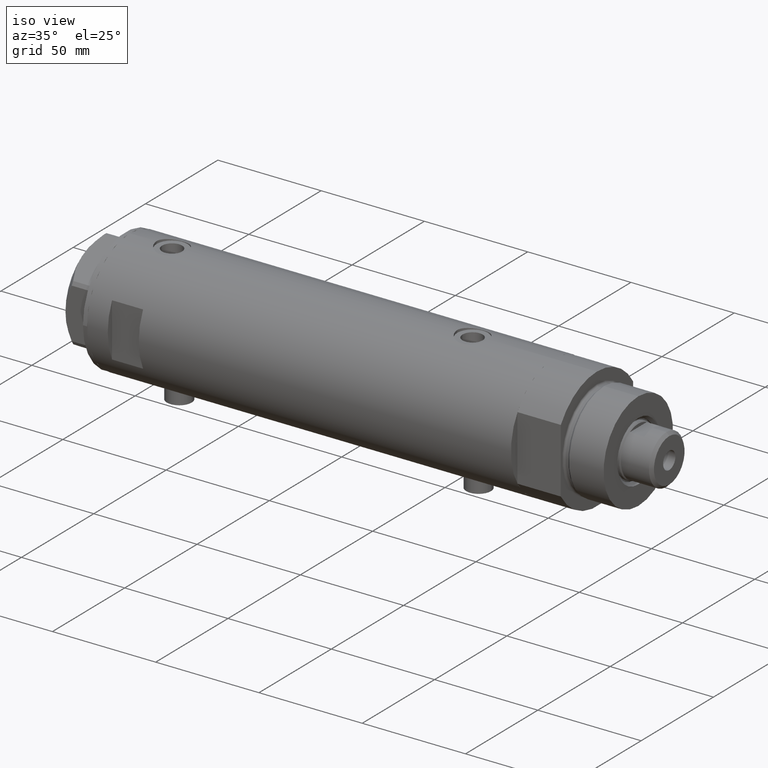
[diagram: clean part render]
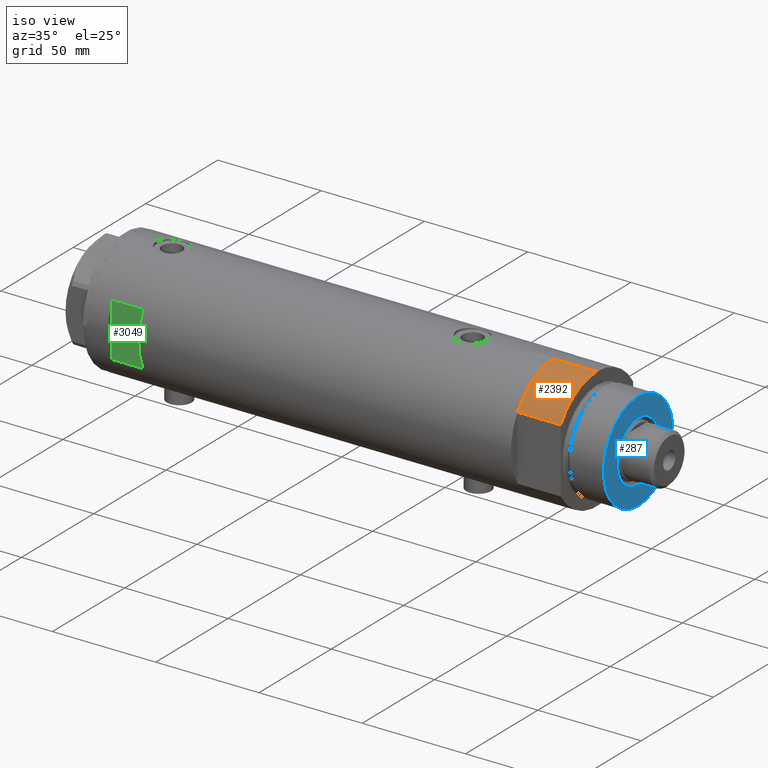
[diagram: same view with three faces highlighted in distinct colors, each labeled with its STEP entity id]
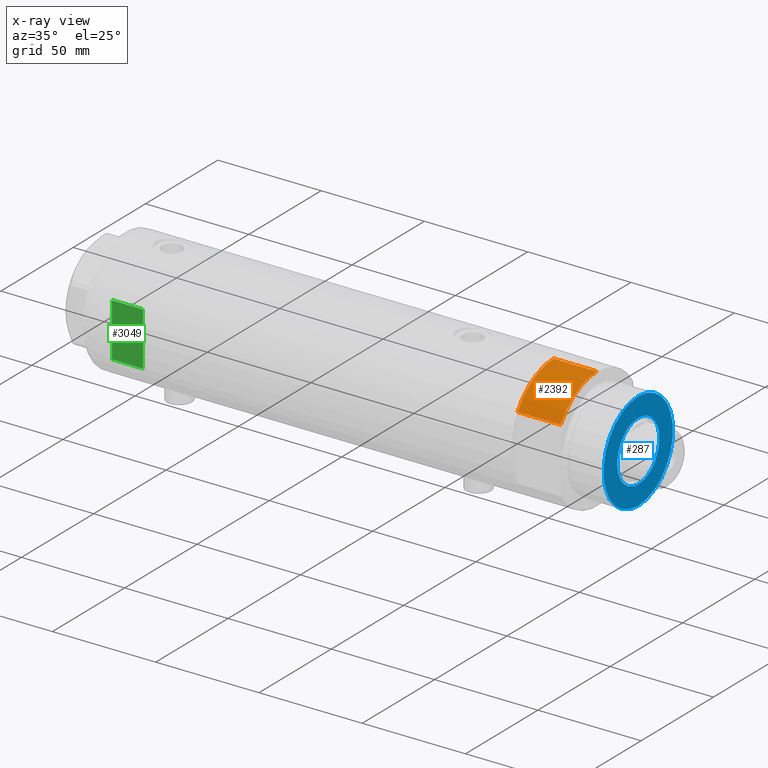
[diagram: x-ray of the same camera — body ghosted, the three highlighted faces saturated]
A machine part, iso view with three faces highlighted in distinct colors.
The next image is the same camera in x-ray (body ghosted, the three faces saturated) — at least one of them is partly hidden behind the body in this view.
Their STEP definitions:

[orange] entity #2392 — the highlighted cylindrical surface (partial cylindrical patch) has radius 29.5 mm, axis along (-1, -0, 0).
#107 = FACE_OUTER_BOUND ( 'NONE', #1812, .T. ) ;
#114 = CARTESIAN_POINT ( 'NONE',  ( -29.50000000000000355, 0.000000000000000000, 21.00000000000000000 ) ) ;
#133 = DIRECTION ( 'NONE',  ( -0.000000000000000000, -0.000000000000000000, -1.000000000000000000 ) ) ;
#175 = EDGE_CURVE ( 'NONE', #3219, #3292, #387, .T. ) ;
#387 = CIRCLE ( 'NONE', #4284, 29.50000000000000355 ) ;
#554 = CARTESIAN_POINT ( 'NONE',  ( 0.000000000000000000, 0.000000000000000000, 0.000000000000000000 ) ) ;
#611 = DIRECTION ( 'NONE',  ( 1.000000000000000000, 0.000000000000000000, 0.000000000000000000 ) ) ;
#969 = DIRECTION ( 'NONE',  ( 0.000000000000000000, 0.000000000000000000, 1.000000000000000000 ) ) ;
#1030 = EDGE_CURVE ( 'NONE', #3635, #3046, #3142, .T. ) ;
#1150 = CYLINDRICAL_SURFACE ( 'NONE', #1991, 29.50000000000000355 ) ;
#1154 = ORIENTED_EDGE ( 'NONE', *, *, #3976, .T. ) ;
#1570 = DIRECTION ( 'NONE',  ( -1.000000000000000000, 0.000000000000000000, 0.000000000000000000 ) ) ;
#1812 = EDGE_LOOP ( 'NONE', ( #3378, #2771, #2357, #1154 ) ) ;
#1822 = LINE ( 'NONE', #114, #3596 ) ;
#1886 = DIRECTION ( 'NONE',  ( 1.000000000000000000, 0.000000000000000000, 0.000000000000000000 ) ) ;
#1991 = AXIS2_PLACEMENT_3D ( 'NONE', #2677, #133, #1570 ) ;
#2006 = EDGE_CURVE ( 'NONE', #3635, #3219, #1822, .T. ) ;
#2121 = CARTESIAN_POINT ( 'NONE',  ( -15.66045976336582690, -25.00000000000000000, 0.000000000000000000 ) ) ;
#2284 = CARTESIAN_POINT ( 'NONE',  ( -29.50000000000000355, 0.000000000000000000, 21.00000000000000000 ) ) ;
#2357 = ORIENTED_EDGE ( 'NONE', *, *, #175, .T. ) ;
#2392 = ADVANCED_FACE ( 'NONE', ( #107 ), #1150, .T. ) ;
#2498 = CARTESIAN_POINT ( 'NONE',  ( -29.50000000000000355, 0.000000000000000000, 0.000000000000000000 ) ) ;
#2553 = DIRECTION ( 'NONE',  ( -0.000000000000000000, -0.000000000000000000, -1.000000000000000000 ) ) ;
#2677 = CARTESIAN_POINT ( 'NONE',  ( 0.000000000000000000, 0.000000000000000000, 21.00000000000000000 ) ) ;
#2771 = ORIENTED_EDGE ( 'NONE', *, *, #2006, .T. ) ;
#2877 = LINE ( 'NONE', #4291, #3817 ) ;
#2956 = CARTESIAN_POINT ( 'NONE',  ( -15.66045976336583045, -24.99999999999999645, 20.99999999999999645 ) ) ;
#3046 = VERTEX_POINT ( 'NONE', #2956 ) ;
#3142 = CIRCLE ( 'NONE', #4289, 29.50000000000000355 ) ;
#3219 = VERTEX_POINT ( 'NONE', #2498 ) ;
#3221 = DIRECTION ( 'NONE',  ( -0.000000000000000000, -0.000000000000000000, 1.000000000000000000 ) ) ;
#3292 = VERTEX_POINT ( 'NONE', #2121 ) ;
#3378 = ORIENTED_EDGE ( 'NONE', *, *, #1030, .F. ) ;
#3596 = VECTOR ( 'NONE', #2553, 1000.000000000000000 ) ;
#3635 = VERTEX_POINT ( 'NONE', #2284 ) ;
#3817 = VECTOR ( 'NONE', #3221, 1000.000000000000000 ) ;
#3923 = DIRECTION ( 'NONE',  ( 0.000000000000000000, 0.000000000000000000, 1.000000000000000000 ) ) ;
#3976 = EDGE_CURVE ( 'NONE', #3292, #3046, #2877, .T. ) ;
#4263 = CARTESIAN_POINT ( 'NONE',  ( 0.000000000000000000, 0.000000000000000000, 21.00000000000000000 ) ) ;
#4284 = AXIS2_PLACEMENT_3D ( 'NONE', #554, #969, #611 ) ;
#4289 = AXIS2_PLACEMENT_3D ( 'NONE', #4263, #3923, #1886 ) ;
#4291 = CARTESIAN_POINT ( 'NONE',  ( -15.66045976336583401, -25.00000000000000000, 0.000000000000000000 ) ) ;

[blue] entity #287 — the highlighted planar face has unit normal (1, 0, -0).
#94 = DIRECTION ( 'NONE',  ( 1.000000000000000000, 0.000000000000000000, 0.000000000000000000 ) ) ;
#221 = FACE_OUTER_BOUND ( 'NONE', #1067, .T. ) ;
#287 = ADVANCED_FACE ( 'NONE', ( #2294, #221 ), #950, .T. ) ;
#304 = DIRECTION ( 'NONE',  ( 1.000000000000000000, 0.000000000000000000, -0.000000000000000000 ) ) ;
#456 = CARTESIAN_POINT ( 'NONE',  ( 14.54999999999997939, 0.000000000000000000, 41.00000000000000000 ) ) ;
#464 = DIRECTION ( 'NONE',  ( 0.000000000000000000, 0.000000000000000000, 1.000000000000000000 ) ) ;
#817 = ORIENTED_EDGE ( 'NONE', *, *, #3623, .T. ) ;
#912 = DIRECTION ( 'NONE',  ( 1.000000000000000000, 0.000000000000000000, 0.000000000000000000 ) ) ;
#947 = DIRECTION ( 'NONE',  ( -0.000000000000000000, -0.000000000000000000, -1.000000000000000000 ) ) ;
#950 = PLANE ( 'NONE',  #3937 ) ;
#1067 = EDGE_LOOP ( 'NONE', ( #1417, #4242 ) ) ;
#1274 = AXIS2_PLACEMENT_3D ( 'NONE', #2504, #4228, #2526 ) ;
#1335 = CARTESIAN_POINT ( 'NONE',  ( -24.00000000000000355, 0.000000000000000000, 41.00000000000000000 ) ) ;
#1417 = ORIENTED_EDGE ( 'NONE', *, *, #4433, .T. ) ;
#1459 = VERTEX_POINT ( 'NONE', #3270 ) ;
#1628 = AXIS2_PLACEMENT_3D ( 'NONE', #1905, #464, #94 ) ;
#1775 = DIRECTION ( 'NONE',  ( -0.000000000000000000, -0.000000000000000000, -1.000000000000000000 ) ) ;
#1836 = CIRCLE ( 'NONE', #4159, 14.54999999999997939 ) ;
#1905 = CARTESIAN_POINT ( 'NONE',  ( 0.000000000000000000, 0.000000000000000000, 41.00000000000000000 ) ) ;
#2152 = EDGE_CURVE ( 'NONE', #1459, #3909, #1836, .T. ) ;
#2294 = FACE_BOUND ( 'NONE', #2617, .T. ) ;
#2353 = CARTESIAN_POINT ( 'NONE',  ( 0.000000000000000000, 0.000000000000000000, 41.00000000000000000 ) ) ;
#2504 = CARTESIAN_POINT ( 'NONE',  ( 0.000000000000000000, 0.000000000000000000, 41.00000000000000000 ) ) ;
#2526 = DIRECTION ( 'NONE',  ( 1.000000000000000000, 0.000000000000000000, 0.000000000000000000 ) ) ;
#2600 = CARTESIAN_POINT ( 'NONE',  ( 24.00000000000000355, 2.939152317953648289E-15, 41.00000000000000000 ) ) ;
#2617 = EDGE_LOOP ( 'NONE', ( #817, #4216 ) ) ;
#2663 = CIRCLE ( 'NONE', #3731, 14.54999999999997939 ) ;
#3015 = CARTESIAN_POINT ( 'NONE',  ( 0.000000000000000000, 0.000000000000000000, 41.00000000000000000 ) ) ;
#3109 = VERTEX_POINT ( 'NONE', #1335 ) ;
#3270 = CARTESIAN_POINT ( 'NONE',  ( -14.54999999999997939, 1.781861092759396721E-15, 41.00000000000000000 ) ) ;
#3341 = EDGE_CURVE ( 'NONE', #3431, #3109, #3604, .T. ) ;
#3393 = DIRECTION ( 'NONE',  ( 1.000000000000000000, 0.000000000000000000, 0.000000000000000000 ) ) ;
#3409 = DIRECTION ( 'NONE',  ( 0.000000000000000000, 0.000000000000000000, 1.000000000000000000 ) ) ;
#3431 = VERTEX_POINT ( 'NONE', #2600 ) ;
#3604 = CIRCLE ( 'NONE', #1628, 24.00000000000000355 ) ;
#3623 = EDGE_CURVE ( 'NONE', #3909, #1459, #2663, .T. ) ;
#3731 = AXIS2_PLACEMENT_3D ( 'NONE', #3015, #947, #912 ) ;
#3909 = VERTEX_POINT ( 'NONE', #456 ) ;
#3937 = AXIS2_PLACEMENT_3D ( 'NONE', #2353, #3409, #304 ) ;
#3994 = CARTESIAN_POINT ( 'NONE',  ( 0.000000000000000000, 0.000000000000000000, 41.00000000000000000 ) ) ;
#4159 = AXIS2_PLACEMENT_3D ( 'NONE', #3994, #1775, #3393 ) ;
#4216 = ORIENTED_EDGE ( 'NONE', *, *, #2152, .T. ) ;
#4228 = DIRECTION ( 'NONE',  ( 0.000000000000000000, 0.000000000000000000, 1.000000000000000000 ) ) ;
#4242 = ORIENTED_EDGE ( 'NONE', *, *, #3341, .T. ) ;
#4384 = CIRCLE ( 'NONE', #1274, 24.00000000000000355 ) ;
#4433 = EDGE_CURVE ( 'NONE', #3109, #3431, #4384, .T. ) ;

[green] entity #3049 — the highlighted planar face has unit normal (-0, 1, 0).
#73 = EDGE_CURVE ( 'NONE', #4462, #3040, #1469, .T. ) ;
#240 = EDGE_CURVE ( 'NONE', #3040, #2853, #2667, .T. ) ;
#290 = DIRECTION ( 'NONE',  ( 0.000000000000000000, 0.000000000000000000, 1.000000000000000000 ) ) ;
#498 = CARTESIAN_POINT ( 'NONE',  ( -12.96148139681573319, -26.49999999999998934, 77.59999999999996589 ) ) ;
#526 = EDGE_LOOP ( 'NONE', ( #1990, #615, #4239, #4140 ) ) ;
#615 = ORIENTED_EDGE ( 'NONE', *, *, #240, .T. ) ;
#759 = VECTOR ( 'NONE', #3115, 1000.000000000000000 ) ;
#847 = EDGE_CURVE ( 'NONE', #4462, #4279, #2008, .T. ) ;
#884 = EDGE_CURVE ( 'NONE', #2853, #4279, #1696, .T. ) ;
#932 = DIRECTION ( 'NONE',  ( 1.000000000000000000, -0.000000000000000000, -0.000000000000000000 ) ) ;
#961 = VECTOR ( 'NONE', #290, 1000.000000000000000 ) ;
#1469 = LINE ( 'NONE', #2860, #3145 ) ;
#1473 = PLANE ( 'NONE',  #4376 ) ;
#1696 = LINE ( 'NONE', #2743, #961 ) ;
#1743 = VECTOR ( 'NONE', #932, 1000.000000000000000 ) ;
#1990 = ORIENTED_EDGE ( 'NONE', *, *, #73, .T. ) ;
#2008 = LINE ( 'NONE', #3796, #759 ) ;
#2667 = LINE ( 'NONE', #4030, #1743 ) ;
#2743 = CARTESIAN_POINT ( 'NONE',  ( 12.96148139681573319, -26.49999999999999645, -102.5999999999999943 ) ) ;
#2853 = VERTEX_POINT ( 'NONE', #2984 ) ;
#2860 = CARTESIAN_POINT ( 'NONE',  ( -12.96148139681573319, -26.49999999999999645, -102.5999999999999943 ) ) ;
#2864 = CARTESIAN_POINT ( 'NONE',  ( -29.50000000000000355, -26.50000000000000355, 92.59999999999999432 ) ) ;
#2984 = CARTESIAN_POINT ( 'NONE',  ( 12.96148139681573319, -26.49999999999998934, 77.59999999999996589 ) ) ;
#3040 = VERTEX_POINT ( 'NONE', #498 ) ;
#3049 = ADVANCED_FACE ( 'NONE', ( #4330 ), #1473, .F. ) ;
#3115 = DIRECTION ( 'NONE',  ( 1.000000000000000000, -0.000000000000000000, -0.000000000000000000 ) ) ;
#3145 = VECTOR ( 'NONE', #3385, 1000.000000000000000 ) ;
#3262 = DIRECTION ( 'NONE',  ( 0.000000000000000000, -0.000000000000000000, 1.000000000000000000 ) ) ;
#3385 = DIRECTION ( 'NONE',  ( -0.000000000000000000, -0.000000000000000000, -1.000000000000000000 ) ) ;
#3468 = CARTESIAN_POINT ( 'NONE',  ( 12.96148139681573319, -26.49999999999998934, 92.59999999999999432 ) ) ;
#3579 = DIRECTION ( 'NONE',  ( 0.000000000000000000, 1.000000000000000000, 0.000000000000000000 ) ) ;
#3796 = CARTESIAN_POINT ( 'NONE',  ( -29.50000000000000355, -26.50000000000000355, 92.59999999999999432 ) ) ;
#4030 = CARTESIAN_POINT ( 'NONE',  ( -29.50000000000000355, -26.50000000000000355, 77.59999999999999432 ) ) ;
#4140 = ORIENTED_EDGE ( 'NONE', *, *, #847, .F. ) ;
#4239 = ORIENTED_EDGE ( 'NONE', *, *, #884, .T. ) ;
#4279 = VERTEX_POINT ( 'NONE', #3468 ) ;
#4330 = FACE_OUTER_BOUND ( 'NONE', #526, .T. ) ;
#4331 = CARTESIAN_POINT ( 'NONE',  ( -12.96148139681573319, -26.49999999999998934, 92.59999999999999432 ) ) ;
#4376 = AXIS2_PLACEMENT_3D ( 'NONE', #2864, #3579, #3262 ) ;
#4462 = VERTEX_POINT ( 'NONE', #4331 ) ;